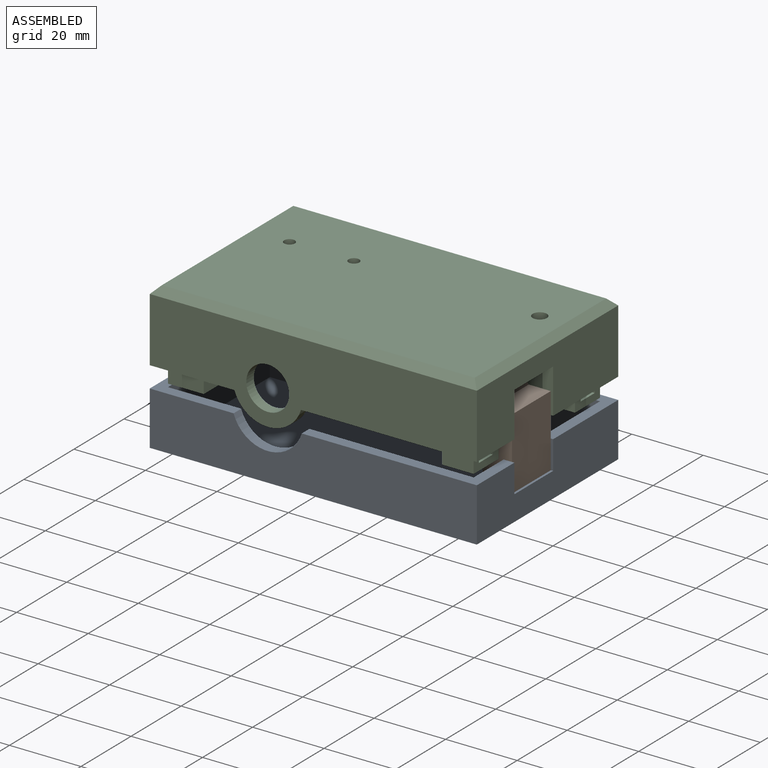
[diagram: assembled view]
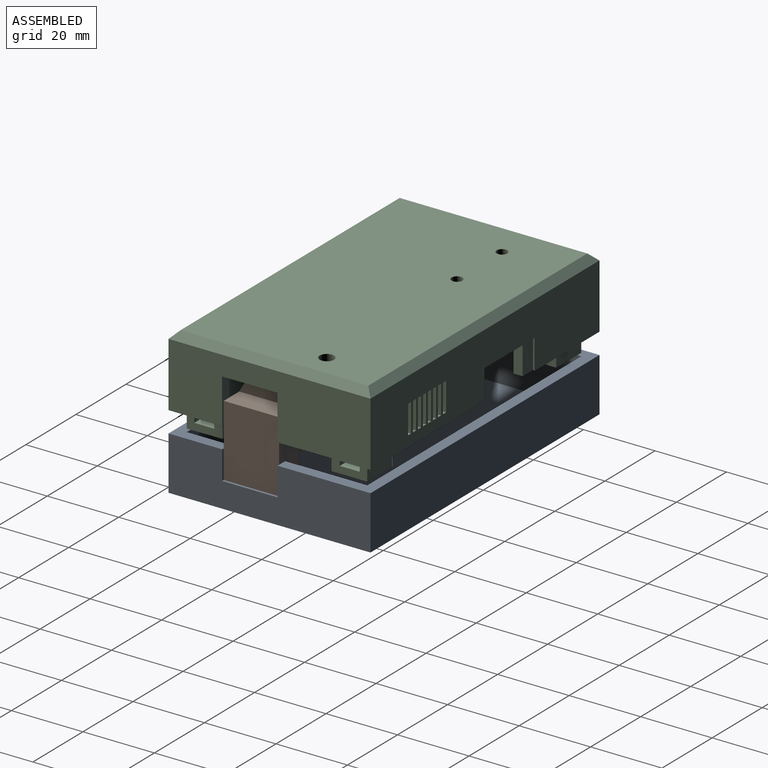
[diagram: assembled view, second angle]
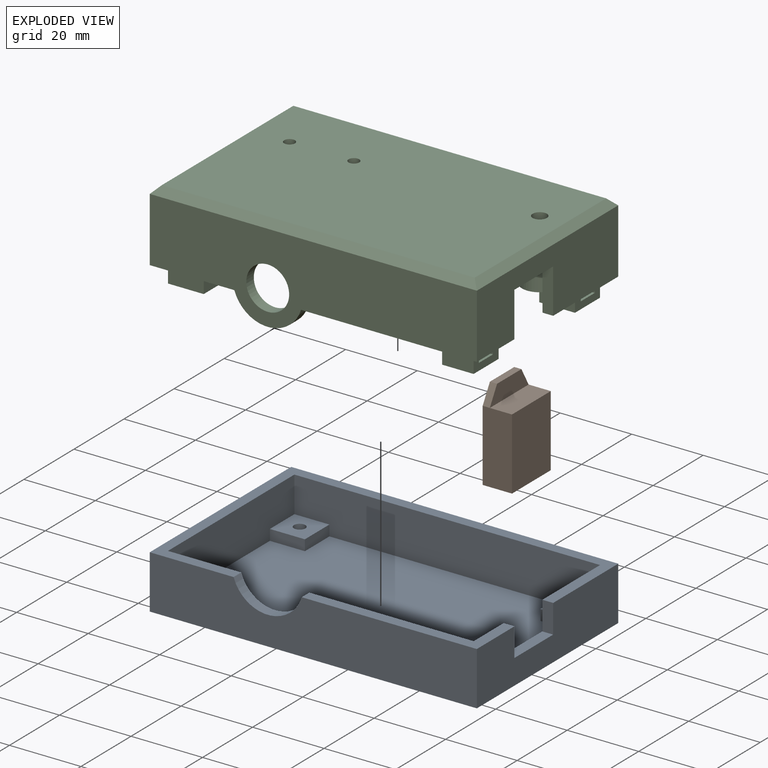
[diagram: exploded view]
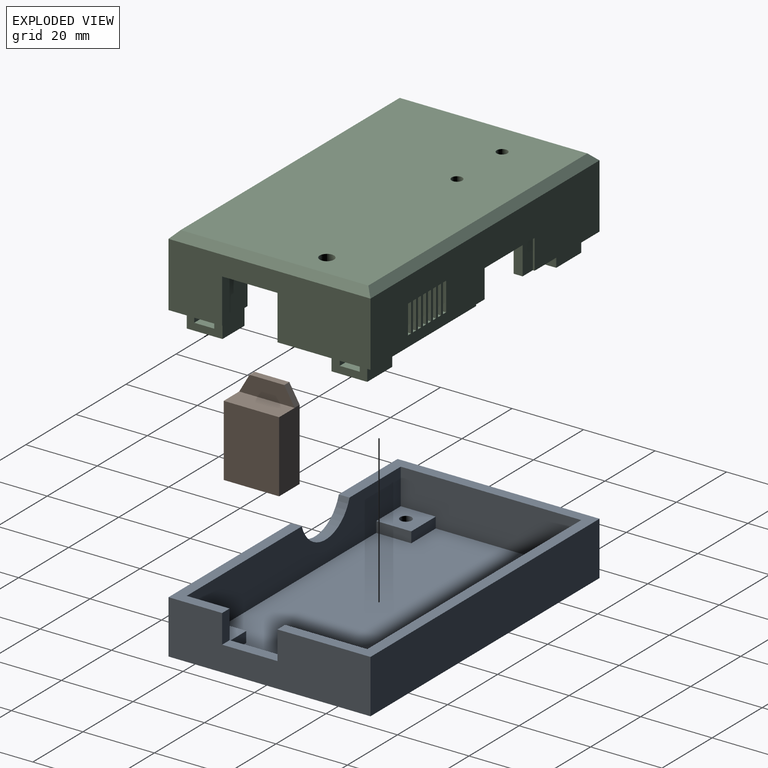
[diagram: exploded view, second angle]
ASSEMBLY  parts=3 mates=2
PART A: 40 faces, bbox 91.5x56.5x15 mm
  f0: plane 91.5x56.5mm, normal (0,0,1), area 565.4mm2, adj f5,f7,f8,f11,f24,f35,f36,f37
  f1: cylinder r=1.6mm len=3.2mm, axis (0,0,1), area 20.1mm2, adj f14,f31
  f2: cylinder r=1.6mm len=3.2mm, axis (0,0,1), area 20.1mm2, adj f20,f29
  f3: cylinder r=1.6mm len=3.2mm, axis (0,0,1), area 20.1mm2, adj f23,f27
  f4: cylinder r=1.6mm len=3.2mm, axis (0,0,1), area 20.1mm2, adj f17,f25
  f5: plane 85.5x13mm, normal (0,1,0), area 954.7mm2, adj f0,f6,f8,f9,f11,f19,f20,f22
  f6: plane 85.5x50.5mm, normal (0,0,1), area 3933.6mm2, adj f5,f7,f8,f11,f12,f13,f15,f16
  f7: plane 85.5x13mm, normal (0,-1,0), area 1052.7mm2, adj f0,f6,f8,f11,f13,f14,f16,f17
  f8: plane 50.5x13mm, normal (1,0,0), area 597.7mm2, adj f0,f5,f6,f7,f12,f14,f18,f20
  f9: plane 48.96x15mm, normal (0,0,1), area 182.9mm2, adj f5,f11,f24,f33,f36,f39
  f10: plane 91.5x56.5mm, normal (0,0,-1), area 5056.7mm2, adj f26,f28,f30,f32,f36,f37,f38,f39
  f11: plane 50.5x13mm, normal (-1,0,0), area 473.7mm2, adj f0,f5,f6,f7,f9,f15,f17,f21
  f12: plane 9.8x3mm, normal (0,-1,0), area 29.4mm2, adj f6,f8,f13,f14
  f13: plane 9.8x3mm, normal (1,0,0), area 29.4mm2, adj f6,f7,f12,f14
  f14: plane 9.8x9.8mm, normal (0,0,1), area 88mm2, adj f1,f7,f8,f12,f13
  f15: plane 9.8x3mm, normal (0,-1,0), area 29.4mm2, adj f6,f11,f16,f17
  f16: plane 9.8x3mm, normal (-1,0,0), area 29.4mm2, adj f6,f7,f15,f17
  f17: plane 9.8x9.8mm, normal (0,0,1), area 88mm2, adj f4,f7,f11,f15,f16
  f18: plane 9.8x3mm, normal (0,1,0), area 29.4mm2, adj f6,f8,f19,f20
  f19: plane 9.8x3mm, normal (1,0,0), area 29.4mm2, adj f5,f6,f18,f20
  f20: plane 9.8x9.8mm, normal (0,0,1), area 88mm2, adj f2,f5,f8,f18,f19
  f21: plane 9.8x3mm, normal (0,1,0), area 29.4mm2, adj f6,f11,f22,f23
  f22: plane 9.8x3mm, normal (-1,0,0), area 29.4mm2, adj f5,f6,f21,f23
  f23: plane 9.8x9.8mm, normal (0,0,1), area 88mm2, adj f3,f5,f11,f21,f22
  f24: cylinder r=10mm len=19.08mm, axis (0,-1,0), area 76mm2, adj f0,f5,f9,f39
  f25: plane 6x6mm, normal (0,0,-1), area 20.2mm2, adj f4,f26
  f26: cylinder r=3mm len=6mm, axis (0,0,-1), area 56.5mm2, adj f10,f25
  f27: plane 6x6mm, normal (0,0,-1), area 20.2mm2, adj f3,f28
  f28: cylinder r=3mm len=6mm, axis (0,0,-1), area 56.5mm2, adj f10,f27
  f29: plane 6x6mm, normal (0,0,-1), area 20.2mm2, adj f2,f30
  f30: cylinder r=3mm len=6mm, axis (0,0,-1), area 56.5mm2, adj f10,f29
  f31: plane 6x6mm, normal (0,0,-1), area 20.2mm2, adj f1,f32
  f32: cylinder r=3mm len=6mm, axis (0,0,-1), area 56.5mm2, adj f10,f31
  f33: plane 8x3mm, normal (0,1,0), area 24mm2, adj f9,f11,f34,f36
  f34: plane 15.5x3mm, normal (0,0,1), area 46.5mm2, adj f11,f33,f35,f36
  f35: plane 8x3mm, normal (0,-1,0), area 24mm2, adj f0,f11,f34,f36
  f36: plane 56.5x15mm, normal (1,0,0), area 723.5mm2, adj f0,f9,f10,f33,f34,f35,f37,f39
  f37: plane 91.5x15mm, normal (0,1,0), area 1372.5mm2, adj f0,f10,f36,f38
  f38: plane 56.5x15mm, normal (-1,0,0), area 847.5mm2, adj f0,f10,f37,f39
  f39: plane 91.5x15mm, normal (0,-1,0), area 1274.5mm2, adj f0,f9,f10,f24,f36,f38
PART B: 15 faces, bbox 8.2x15.5x25 mm
  f0: plane 15.5x8.2mm, normal (0,0,-1), area 62.1mm2, adj f1,f2,f5,f6,f10,f11,f12,f13
  f1: plane 20x8.2mm, normal (0,1,0), area 164mm2, adj f0,f5,f6,f7,f8
  f2: plane 20x8.2mm, normal (0,-1,0), area 164mm2, adj f0,f5,f6,f7,f9
  f3: plane 9.73x2mm, normal (0,0,1), area 19.5mm2, adj f4,f5,f8,f9
  f4: plane 15.5x5mm, normal (1,0,0), area 63.1mm2, adj f3,f7,f8,f9
  f5: plane 25x15.5mm, normal (-1,0,0), area 373.1mm2, adj f0,f1,f2,f3,f8,f9
  f6: plane 20x15.5mm, normal (1,0,0), area 310mm2, adj f0,f1,f2,f7
  f7: plane 15.5x6.2mm, normal (0,0,1), area 96.1mm2, adj f1,f2,f4,f6
  f8: plane 5x2.89mm, normal (0,0.87,0.5), area 11.5mm2, adj f1,f3,f4,f5
  f9: plane 5x2.89mm, normal (0,-0.87,0.5), area 11.5mm2, adj f2,f3,f4,f5
  f10: plane 18.5x5.2mm, normal (0,-1,0), area 96.2mm2, adj f0,f12,f13,f14
  f11: plane 18.5x5.2mm, normal (0,1,0), area 96.2mm2, adj f0,f12,f13,f14
  f12: plane 18.5x12.5mm, normal (1,0,0), area 231.2mm2, adj f0,f10,f11,f14
  f13: plane 18.5x12.5mm, normal (-1,0,0), area 231.2mm2, adj f0,f10,f11,f14
  f14: plane 12.5x5.2mm, normal (0,0,-1), area 65mm2, adj f10,f11,f12,f13
PART C: 122 faces, bbox 91.5x56.5x26.8 mm
  f0: plane 91.5x18mm, normal (0,1,0), area 1376mm2, adj f4,f6,f77,f78,f79,f81,f83,f84
  f1: plane 65.5x18mm, normal (0,-1,0), area 976mm2, adj f2,f3,f4,f6,f12,f21,f31,f79
  f2: plane 8.3x2.5mm, normal (-1,0,0), area 20.8mm2, adj f1,f6,f79,f82
  f3: plane 8.3x2.5mm, normal (1,0,0), area 20.8mm2, adj f1,f4,f79,f80
  f4: plane 56.5x30mm, normal (0,0,-1), area 310.5mm2, adj f0,f1,f3,f5,f10,f13,f14,f18
  f5: plane 65.5x24.8mm, normal (0,1,0), area 1158.9mm2, adj f4,f7,f12,f16,f26,f67,f68
  f6: plane 46.3x26mm, normal (0,0,-1), area 238.8mm2, adj f0,f1,f2,f9,f28,f29,f55,f56
  f7: plane 49.17x15mm, normal (0,0,-1), area 216.5mm2, adj f5,f9,f23,f24,f50,f51,f52,f53
  f8: plane 10x1.2mm, normal (0,0,-1), area 12mm2, adj f24,f25,f26,f69
  f9: plane 30.5x18mm, normal (-1,0,0), area 355.2mm2, adj f6,f7,f12,f25,f30,f73,f74,f75
  f10: plane 30.5x18mm, normal (1,0,0), area 549mm2, adj f4,f12,f15,f20
  f11: plane 87.5x52.5mm, normal (0,0,1), area 4567mm2, adj f70,f116,f117,f118,f119,f120,f121
  f12: plane 85.5x50.5mm, normal (0,0,-1), area 3825.1mm2, adj f1,f5,f9,f10,f15,f16,f20,f21
  f13: plane 10x5mm, normal (0,-1,0), area 50mm2, adj f4,f14,f16,f17
  f14: plane 10x5mm, normal (-1,0,0), area 50mm2, adj f4,f13,f15,f17
  f15: plane 23x10mm, normal (0,1,0), area 230mm2, adj f10,f12,f14,f16,f17
  f16: plane 23x10mm, normal (1,0,0), area 213.2mm2, adj f5,f12,f13,f15,f17,f37,f38,f39
  f17: plane 10x10mm, normal (0,0,-1), area 92mm2, adj f13,f14,f15,f16,f36
  f18: plane 10x5mm, normal (-1,0,0), area 50mm2, adj f4,f19,f20,f22
  f19: plane 10x5mm, normal (0,1,0), area 50mm2, adj f4,f18,f21,f22
  f20: plane 23x10mm, normal (0,-1,0), area 230mm2, adj f10,f12,f18,f21,f22
  f21: plane 23x10mm, normal (1,0,0), area 213.2mm2, adj f1,f12,f19,f20,f22,f43,f44,f45
  f22: plane 10x10mm, normal (0,0,-1), area 92mm2, adj f18,f19,f20,f21,f35
  f23: plane 10x5mm, normal (1,0,0), area 33.2mm2, adj f7,f24,f25,f27,f49,f50,f53
  f24: plane 10x5mm, normal (0,-1,0), area 44.6mm2, adj f7,f8,f23,f26,f27,f69
  f25: plane 23x10mm, normal (0,1,0), area 224.6mm2, adj f8,f9,f12,f23,f26,f27,f69
  f26: plane 18.5x10mm, normal (-1,0,0), area 185mm2, adj f5,f8,f12,f24,f25
  f27: plane 10x8.8mm, normal (0,0,-1), area 80mm2, adj f23,f24,f25,f34,f69
  f28: plane 10x5mm, normal (1,0,0), area 33.2mm2, adj f6,f29,f30,f32,f54,f55,f58
  f29: plane 10x5mm, normal (0,1,0), area 50mm2, adj f6,f28,f31,f32
  f30: plane 23x10mm, normal (0,-1,0), area 230mm2, adj f9,f12,f28,f31,f32
  f31: plane 23x10mm, normal (-1,0,0), area 230mm2, adj f1,f12,f29,f30,f32
  f32: plane 10x10mm, normal (0,0,-1), area 92mm2, adj f28,f29,f30,f31,f33
  f33: cylinder r=1.6mm len=3.2mm, axis (0,0,-1), area 20.1mm2, adj f32,f54
  f34: cylinder r=1.6mm len=3.2mm, axis (0,0,-1), area 20.1mm2, adj f27,f49
  f35: cylinder r=1.6mm len=3.2mm, axis (0,0,-1), area 20.1mm2, adj f22,f45
  f36: cylinder r=1.6mm len=3.2mm, axis (0,0,-1), area 20.1mm2, adj f17,f39
  f37: plane 6.72x3mm, normal (0,-1,0), area 20.1mm2, adj f16,f39,f40,f42
  f38: plane 6.72x3mm, normal (0,1,0), area 20.1mm2, adj f16,f39,f40,f41
  f39: plane 8.33x5.6mm, normal (0,0,1), area 34.1mm2, adj f16,f36,f37,f38,f41,f42
  f40: plane 8.33x5.6mm, normal (0,0,-1), area 34.1mm2, adj f16,f37,f38,f41,f42,f60
  f41: plane 3x2.8mm, normal (0.87,0.5,0), area 9.7mm2, adj f38,f39,f40,f42
  f42: plane 3x2.8mm, normal (0.87,-0.5,0), area 9.7mm2, adj f37,f39,f40,f41
  f43: plane 6.72x3mm, normal (0,-1,0), area 20.1mm2, adj f21,f45,f46,f48
  f44: plane 6.72x3mm, normal (0,1,0), area 20.1mm2, adj f21,f45,f46,f47
  f45: plane 8.33x5.6mm, normal (0,0,1), area 34.1mm2, adj f21,f35,f43,f44,f47,f48
  f46: plane 8.33x5.6mm, normal (0,0,-1), area 34.1mm2, adj f21,f43,f44,f47,f48,f62
  f47: plane 3x2.8mm, normal (0.87,0.5,0), area 9.7mm2, adj f44,f45,f46,f48
  f48: plane 3x2.8mm, normal (0.87,-0.5,0), area 9.7mm2, adj f43,f45,f46,f47
  f49: plane 8.13x5.6mm, normal (0,0,1), area 33mm2, adj f23,f34,f50,f51,f52,f53
  f50: plane 6.52x3mm, normal (0,1,0), area 19.5mm2, adj f7,f23,f49,f51
  f51: plane 3x2.8mm, normal (0.87,0.5,0), area 9.7mm2, adj f7,f49,f50,f52
  f52: plane 3x2.8mm, normal (0.87,-0.5,0), area 9.7mm2, adj f7,f49,f51,f53
  f53: plane 6.52x3mm, normal (0,-1,0), area 19.5mm2, adj f7,f23,f49,f52
  f54: plane 8.13x5.6mm, normal (0,0,1), area 33mm2, adj f28,f33,f55,f56,f57,f58
  f55: plane 6.52x3mm, normal (0,1,0), area 19.5mm2, adj f6,f28,f54,f56
  f56: plane 3x2.8mm, normal (0.87,0.5,0), area 9.7mm2, adj f6,f54,f55,f57
  f57: plane 3x2.8mm, normal (0.87,-0.5,0), area 9.7mm2, adj f6,f54,f56,f58
  f58: plane 6.52x3mm, normal (0,-1,0), area 19.5mm2, adj f6,f28,f54,f57
  f59: plane 3.2x3.2mm, normal (0,0,-1), area 8mm2, adj f60
  f60: cylinder r=1.6mm len=11mm, axis (0,0,-1), area 110.6mm2, adj f40,f59
  f61: plane 3.2x3.2mm, normal (0,0,-1), area 8mm2, adj f62
  f62: cylinder r=1.6mm len=11mm, axis (0,0,-1), area 110.6mm2, adj f46,f61
  f63: plane 3.2x3.2mm, normal (0,0,-1), area 8mm2, adj f64
  f64: cylinder r=1.6mm len=11mm, axis (0,0,-1), area 110.6mm2, adj f7,f63
  f65: plane 3.2x3.2mm, normal (0,0,-1), area 8mm2, adj f66
  f66: cylinder r=1.6mm len=11mm, axis (0,0,-1), area 110.6mm2, adj f6,f65
  f67: cylinder r=6mm len=12mm, axis (0,-1,0), area 113.1mm2, adj f5,f76
  f68: cylinder r=9.8mm len=18.66mm, axis (0,-1,0), area 74.1mm2, adj f4,f5,f7,f76
  f69: plane 10x4.5mm, normal (-1,0,0), area 45mm2, adj f8,f24,f25,f27
  f70: cylinder r=2mm len=17mm, axis (0,0,1), area 213.6mm2, adj f11,f72
  f71: cylinder r=5mm len=15mm, axis (0,0,1), area 471.2mm2, adj f12,f72
  f72: plane 10x10mm, normal (0,0,-1), area 66mm2, adj f70,f71
  f73: plane 15.5x3mm, normal (0,0,-1), area 46.5mm2, adj f9,f74,f75,f77
  f74: plane 12.5x3mm, normal (0,1,0), area 37.5mm2, adj f7,f9,f73,f77
  f75: plane 12.5x3mm, normal (0,-1,0), area 37.5mm2, adj f6,f9,f73,f77
  f76: plane 91.5x24.8mm, normal (0,-1,0), area 1626.9mm2, adj f4,f7,f67,f68,f77,f78,f119
  f77: plane 56.5x18mm, normal (1,0,0), area 823.2mm2, adj f0,f6,f7,f73,f74,f75,f76,f118
  f78: plane 56.5x18mm, normal (-1,0,0), area 1017mm2, adj f0,f4,f76,f121
  f79: plane 23.4x3mm, normal (0,0,-1), area 49.7mm2, adj f0,f1,f2,f3,f80,f81,f82,f83
  f80: plane 8.3x4.1mm, normal (0,1,0), area 34mm2, adj f3,f4,f79,f81
  f81: plane 8.3x0.5mm, normal (1,0,0), area 4.2mm2, adj f0,f4,f79,f80
  f82: plane 8.3x4.1mm, normal (0,1,0), area 34mm2, adj f2,f6,f79,f83
  f83: plane 8.3x0.5mm, normal (-1,0,0), area 4.2mm2, adj f0,f6,f79,f82
  f84: plane 8x3mm, normal (1,0,0), area 24mm2, adj f0,f1,f85,f87
  f85: plane 3x1.2mm, normal (0,0,-1), area 3.6mm2, adj f0,f1,f84,f86
  f86: plane 8x3mm, normal (-1,0,0), area 24mm2, adj f0,f1,f85,f87
  f87: plane 3x1.2mm, normal (0,0,1), area 3.6mm2, adj f0,f1,f84,f86
  f88: plane 8x3mm, normal (1,0,0), area 24mm2, adj f0,f1,f89,f91
  f89: plane 3x1.2mm, normal (0,0,-1), area 3.6mm2, adj f0,f1,f88,f90
  f90: plane 8x3mm, normal (-1,0,0), area 24mm2, adj f0,f1,f89,f91
  f91: plane 3x1.2mm, normal (0,0,1), area 3.6mm2, adj f0,f1,f88,f90
  f92: plane 8x3mm, normal (1,0,0), area 24mm2, adj f0,f1,f93,f95
  f93: plane 3x1.2mm, normal (0,0,-1), area 3.6mm2, adj f0,f1,f92,f94
  f94: plane 8x3mm, normal (-1,0,0), area 24mm2, adj f0,f1,f93,f95
  f95: plane 3x1.2mm, normal (0,0,1), area 3.6mm2, adj f0,f1,f92,f94
  f96: plane 8x3mm, normal (1,0,0), area 24mm2, adj f0,f1,f97,f99
  f97: plane 3x1.2mm, normal (0,0,-1), area 3.6mm2, adj f0,f1,f96,f98
  f98: plane 8x3mm, normal (-1,0,0), area 24mm2, adj f0,f1,f97,f99
  f99: plane 3x1.2mm, normal (0,0,1), area 3.6mm2, adj f0,f1,f96,f98
  f100: plane 8x3mm, normal (1,0,0), area 24mm2, adj f0,f1,f101,f103
  f101: plane 3x1.2mm, normal (0,0,-1), area 3.6mm2, adj f0,f1,f100,f102
  f102: plane 8x3mm, normal (-1,0,0), area 24mm2, adj f0,f1,f101,f103
  f103: plane 3x1.2mm, normal (0,0,1), area 3.6mm2, adj f0,f1,f100,f102
  f104: plane 8x3mm, normal (1,0,0), area 24mm2, adj f0,f1,f105,f107
  f105: plane 3x1.2mm, normal (0,0,-1), area 3.6mm2, adj f0,f1,f104,f106
  f106: plane 8x3mm, normal (-1,0,0), area 24mm2, adj f0,f1,f105,f107
  f107: plane 3x1.2mm, normal (0,0,1), area 3.6mm2, adj f0,f1,f104,f106
  f108: plane 8x3mm, normal (1,0,0), area 24mm2, adj f0,f1,f109,f111
  f109: plane 3x1.2mm, normal (0,0,-1), area 3.6mm2, adj f0,f1,f108,f110
  f110: plane 8x3mm, normal (-1,0,0), area 24mm2, adj f0,f1,f109,f111
  f111: plane 3x1.2mm, normal (0,0,1), area 3.6mm2, adj f0,f1,f108,f110
  f112: plane 3x1.2mm, normal (0,0,-1), area 3.6mm2, adj f0,f1,f113,f115
  f113: plane 8x3mm, normal (-1,0,0), area 24mm2, adj f0,f1,f112,f114
  f114: plane 3x1.2mm, normal (0,0,1), area 3.6mm2, adj f0,f1,f113,f115
  f115: plane 8x3mm, normal (1,0,0), area 24mm2, adj f0,f1,f112,f114
  f116: cylinder r=1.5mm len=3mm, axis (0,0,1), area 18.8mm2, adj f11,f12
  f117: cylinder r=1.5mm len=3mm, axis (0,0,1), area 18.8mm2, adj f11,f12
  f118: plane 56.5x2mm, normal (0.71,0,0.71), area 154.1mm2, adj f11,f77,f119,f120
  f119: plane 91.5x2mm, normal (0,-0.71,0.71), area 253.1mm2, adj f11,f76,f118,f121
  f120: plane 91.5x2mm, normal (0,0.71,0.71), area 253.1mm2, adj f0,f11,f118,f121
  f121: plane 56.5x2mm, normal (-0.71,0,0.71), area 154.1mm2, adj f11,f78,f119,f120
PLACE A t=(-72.13,-24.2,22.7)mm
PLACE B t=(-49.68,6.55,29.7)mm
PLACE C t=(-72.13,-24.2,28.6)mm
MATE planar A.f34 <-> B.f0  axis (0,0,1) through (15.37,-2.45,29.7)mm
MATE cylindrical A.f4 <-> C.f33  axis (0,0,-1) through (10.47,23.4,25.7)mm
